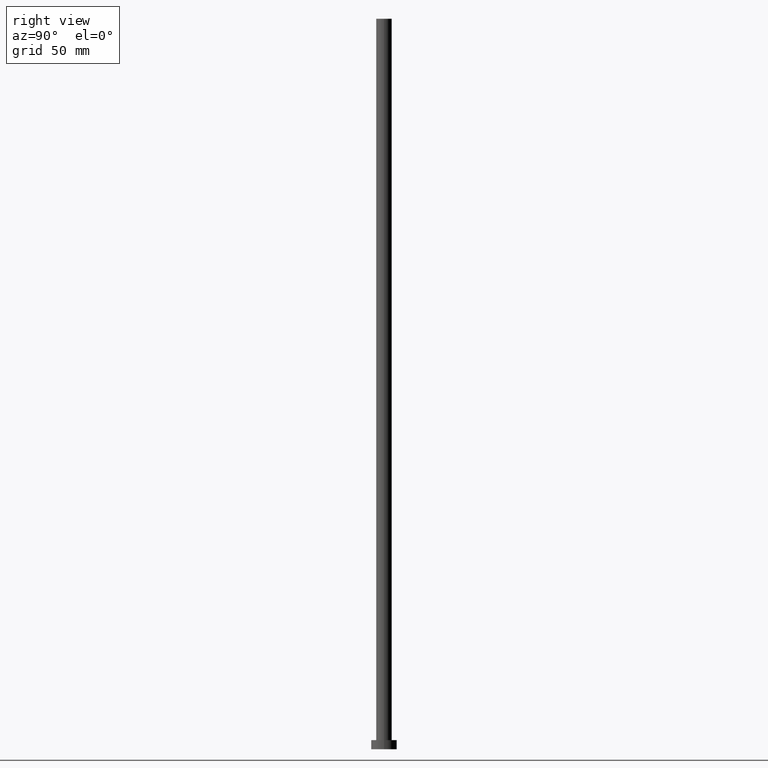
[diagram: clean part render]
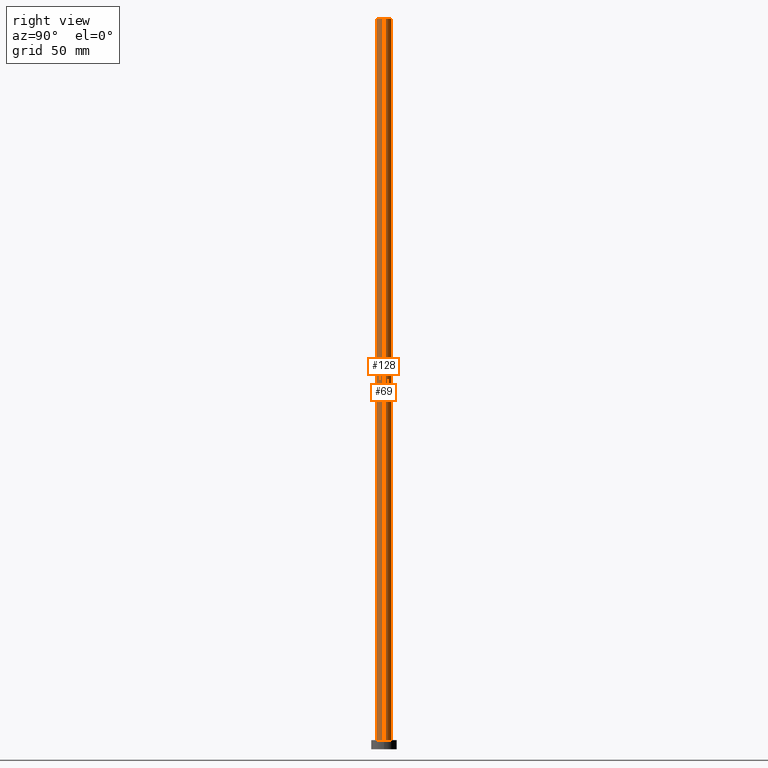
[diagram: same view with one multi-face feature highlighted, each face labeled with its STEP entity id]
A machine part, right view. The highlighted faces form ONE feature: a constant-radius fillet chain: 2 tangent blend faces with common blend radius 4.25 mm. The faces share edges in the B-rep.
Their STEP definitions:
[1] entity #69 (Cylinder):
#4 = CARTESIAN_POINT ( 'NONE',  ( -4.250000000000000000, 0.000000000000000000, 5.000000000000000000 ) ) ;
#13 = DIRECTION ( 'NONE',  ( 0.000000000000000000, 0.000000000000000000, 1.000000000000000000 ) ) ;
#19 = CIRCLE ( 'NONE', #134, 4.250000000000000000 ) ;
#21 = ORIENTED_EDGE ( 'NONE', *, *, #207, .F. ) ;
#24 = ORIENTED_EDGE ( 'NONE', *, *, #44, .T. ) ;
#29 = CARTESIAN_POINT ( 'NONE',  ( 0.000000000000000000, 0.000000000000000000, 400.0000000000000000 ) ) ;
#34 = CARTESIAN_POINT ( 'NONE',  ( 0.000000000000000000, 0.000000000000000000, 400.0000000000000000 ) ) ;
#38 = CARTESIAN_POINT ( 'NONE',  ( 4.250000000000000000, 5.204748896376249713E-16, 400.0000000000000000 ) ) ;
#39 = LINE ( 'NONE', #206, #179 ) ;
#44 = EDGE_CURVE ( 'NONE', #250, #155, #19, .T. ) ;
#47 = EDGE_LOOP ( 'NONE', ( #90, #224, #24, #21 ) ) ;
#49 = AXIS2_PLACEMENT_3D ( 'NONE', #29, #74, #113 ) ;
#69 = ADVANCED_FACE ( 'NONE', ( #136 ), #222, .T. ) ;
#74 = DIRECTION ( 'NONE',  ( -0.000000000000000000, -0.000000000000000000, -1.000000000000000000 ) ) ;
#80 = CIRCLE ( 'NONE', #137, 4.250000000000000000 ) ;
#88 = CARTESIAN_POINT ( 'NONE',  ( 4.250000000000000000, 5.204748896376249713E-16, 400.0000000000000000 ) ) ;
#90 = ORIENTED_EDGE ( 'NONE', *, *, #193, .F. ) ;
#93 = DIRECTION ( 'NONE',  ( 1.000000000000000000, 0.000000000000000000, 0.000000000000000000 ) ) ;
#104 = VECTOR ( 'NONE', #116, 1000.000000000000000 ) ;
#107 = VERTEX_POINT ( 'NONE', #120 ) ;
#113 = DIRECTION ( 'NONE',  ( -1.000000000000000000, 0.000000000000000000, 0.000000000000000000 ) ) ;
#116 = DIRECTION ( 'NONE',  ( -0.000000000000000000, -0.000000000000000000, -1.000000000000000000 ) ) ;
#120 = CARTESIAN_POINT ( 'NONE',  ( -4.250000000000000000, 0.000000000000000000, 400.0000000000000000 ) ) ;
#121 = DIRECTION ( 'NONE',  ( -0.000000000000000000, -0.000000000000000000, -1.000000000000000000 ) ) ;
#129 = CARTESIAN_POINT ( 'NONE',  ( 4.250000000000000000, 5.204748896376249713E-16, 5.000000000000000000 ) ) ;
#134 = AXIS2_PLACEMENT_3D ( 'NONE', #235, #13, #93 ) ;
#136 = FACE_OUTER_BOUND ( 'NONE', #47, .T. ) ;
#137 = AXIS2_PLACEMENT_3D ( 'NONE', #34, #228, #244 ) ;
#155 = VERTEX_POINT ( 'NONE', #4 ) ;
#179 = VECTOR ( 'NONE', #121, 1000.000000000000000 ) ;
#193 = EDGE_CURVE ( 'NONE', #221, #107, #80, .T. ) ;
#203 = EDGE_CURVE ( 'NONE', #221, #250, #212, .T. ) ;
#206 = CARTESIAN_POINT ( 'NONE',  ( -4.250000000000000000, 0.000000000000000000, 400.0000000000000000 ) ) ;
#207 = EDGE_CURVE ( 'NONE', #107, #155, #39, .T. ) ;
#212 = LINE ( 'NONE', #38, #104 ) ;
#221 = VERTEX_POINT ( 'NONE', #88 ) ;
#222 = CYLINDRICAL_SURFACE ( 'NONE', #49, 4.250000000000000000 ) ;
#224 = ORIENTED_EDGE ( 'NONE', *, *, #203, .T. ) ;
#228 = DIRECTION ( 'NONE',  ( 0.000000000000000000, 0.000000000000000000, 1.000000000000000000 ) ) ;
#235 = CARTESIAN_POINT ( 'NONE',  ( 0.000000000000000000, 0.000000000000000000, 5.000000000000000000 ) ) ;
#244 = DIRECTION ( 'NONE',  ( 1.000000000000000000, 0.000000000000000000, 0.000000000000000000 ) ) ;
#250 = VERTEX_POINT ( 'NONE', #129 ) ;
[2] entity #128 (Cylinder):
#4 = CARTESIAN_POINT ( 'NONE',  ( -4.250000000000000000, 0.000000000000000000, 5.000000000000000000 ) ) ;
#23 = EDGE_CURVE ( 'NONE', #155, #250, #99, .T. ) ;
#26 = ORIENTED_EDGE ( 'NONE', *, *, #23, .T. ) ;
#32 = DIRECTION ( 'NONE',  ( 0.000000000000000000, 0.000000000000000000, 1.000000000000000000 ) ) ;
#38 = CARTESIAN_POINT ( 'NONE',  ( 4.250000000000000000, 5.204748896376249713E-16, 400.0000000000000000 ) ) ;
#39 = LINE ( 'NONE', #206, #179 ) ;
#41 = DIRECTION ( 'NONE',  ( -0.000000000000000000, -0.000000000000000000, -1.000000000000000000 ) ) ;
#61 = DIRECTION ( 'NONE',  ( 0.000000000000000000, 0.000000000000000000, 1.000000000000000000 ) ) ;
#64 = AXIS2_PLACEMENT_3D ( 'NONE', #245, #61, #255 ) ;
#86 = EDGE_LOOP ( 'NONE', ( #247, #181, #140, #26 ) ) ;
#88 = CARTESIAN_POINT ( 'NONE',  ( 4.250000000000000000, 5.204748896376249713E-16, 400.0000000000000000 ) ) ;
#99 = CIRCLE ( 'NONE', #135, 4.250000000000000000 ) ;
#104 = VECTOR ( 'NONE', #116, 1000.000000000000000 ) ;
#107 = VERTEX_POINT ( 'NONE', #120 ) ;
#116 = DIRECTION ( 'NONE',  ( -0.000000000000000000, -0.000000000000000000, -1.000000000000000000 ) ) ;
#118 = CYLINDRICAL_SURFACE ( 'NONE', #231, 4.250000000000000000 ) ;
#120 = CARTESIAN_POINT ( 'NONE',  ( -4.250000000000000000, 0.000000000000000000, 400.0000000000000000 ) ) ;
#121 = DIRECTION ( 'NONE',  ( -0.000000000000000000, -0.000000000000000000, -1.000000000000000000 ) ) ;
#128 = ADVANCED_FACE ( 'NONE', ( #229 ), #118, .T. ) ;
#129 = CARTESIAN_POINT ( 'NONE',  ( 4.250000000000000000, 5.204748896376249713E-16, 5.000000000000000000 ) ) ;
#135 = AXIS2_PLACEMENT_3D ( 'NONE', #201, #32, #156 ) ;
#140 = ORIENTED_EDGE ( 'NONE', *, *, #207, .T. ) ;
#155 = VERTEX_POINT ( 'NONE', #4 ) ;
#156 = DIRECTION ( 'NONE',  ( 1.000000000000000000, 0.000000000000000000, 0.000000000000000000 ) ) ;
#168 = DIRECTION ( 'NONE',  ( -1.000000000000000000, 0.000000000000000000, 0.000000000000000000 ) ) ;
#179 = VECTOR ( 'NONE', #121, 1000.000000000000000 ) ;
#180 = EDGE_CURVE ( 'NONE', #107, #221, #216, .T. ) ;
#181 = ORIENTED_EDGE ( 'NONE', *, *, #180, .F. ) ;
#194 = CARTESIAN_POINT ( 'NONE',  ( 0.000000000000000000, 0.000000000000000000, 400.0000000000000000 ) ) ;
#201 = CARTESIAN_POINT ( 'NONE',  ( 0.000000000000000000, 0.000000000000000000, 5.000000000000000000 ) ) ;
#203 = EDGE_CURVE ( 'NONE', #221, #250, #212, .T. ) ;
#206 = CARTESIAN_POINT ( 'NONE',  ( -4.250000000000000000, 0.000000000000000000, 400.0000000000000000 ) ) ;
#207 = EDGE_CURVE ( 'NONE', #107, #155, #39, .T. ) ;
#212 = LINE ( 'NONE', #38, #104 ) ;
#216 = CIRCLE ( 'NONE', #64, 4.250000000000000000 ) ;
#221 = VERTEX_POINT ( 'NONE', #88 ) ;
#229 = FACE_OUTER_BOUND ( 'NONE', #86, .T. ) ;
#231 = AXIS2_PLACEMENT_3D ( 'NONE', #194, #41, #168 ) ;
#245 = CARTESIAN_POINT ( 'NONE',  ( 0.000000000000000000, 0.000000000000000000, 400.0000000000000000 ) ) ;
#247 = ORIENTED_EDGE ( 'NONE', *, *, #203, .F. ) ;
#250 = VERTEX_POINT ( 'NONE', #129 ) ;
#255 = DIRECTION ( 'NONE',  ( 1.000000000000000000, 0.000000000000000000, 0.000000000000000000 ) ) ;